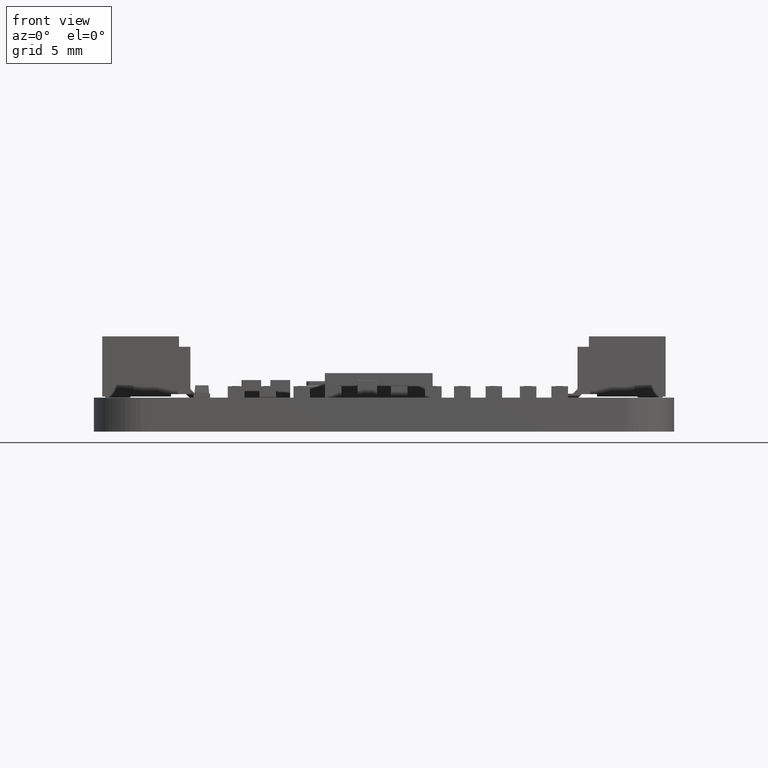
[diagram: clean part render]
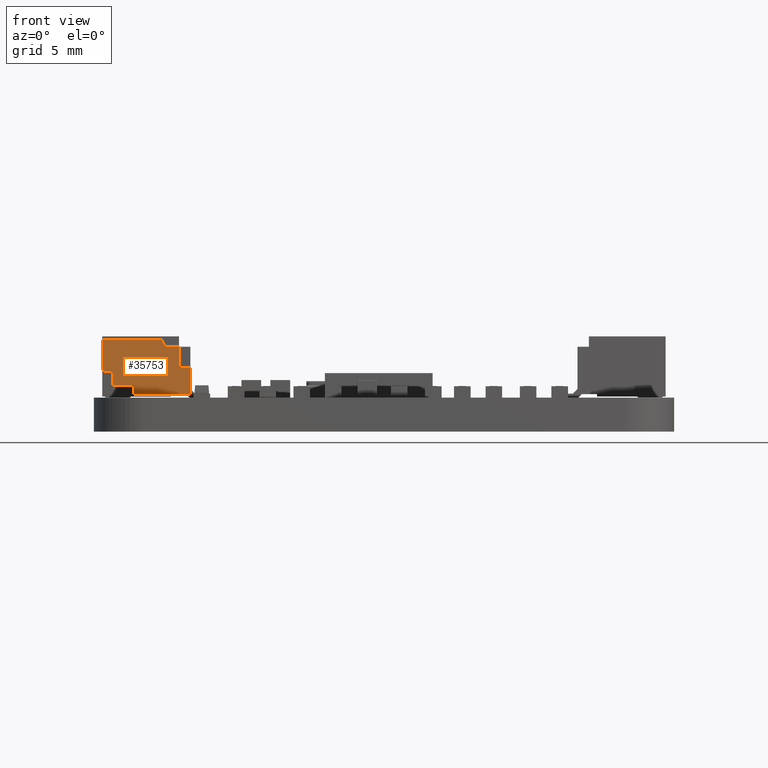
[diagram: same view with one face highlighted and labeled with its STEP entity id]
A machine part, front view. The second image highlights one B-rep face of the part: STEP entity #35753.
In plain terms, the highlighted planar face has unit normal (-0, 1, -0).
Its self-contained STEP definition (entity closure, byte-faithful):
#33131 = VERTEX_POINT('',#33132);
#33132 = CARTESIAN_POINT('',(3.,1.655,3.895));
#33138 = EDGE_CURVE('',#33131,#33139,#33141,.T.);
#33139 = VERTEX_POINT('',#33140);
#33140 = CARTESIAN_POINT('',(3.,3.105,3.895));
#33141 = LINE('',#33142,#33143);
#33142 = CARTESIAN_POINT('',(3.,3.255,3.895));
#33143 = VECTOR('',#33144,1.);
#33144 = DIRECTION('',(-5.605193857299E-45,1.,3.914088217711E-59));
#33680 = VERTEX_POINT('',#33681);
#33681 = CARTESIAN_POINT('',(3.,0.47,-0.355));
#33687 = EDGE_CURVE('',#33680,#33688,#33690,.T.);
#33688 = VERTEX_POINT('',#33689);
#33689 = CARTESIAN_POINT('',(3.,0.47,2.395));
#33690 = LINE('',#33691,#33692);
#33691 = CARTESIAN_POINT('',(3.,0.47,-1.055));
#33692 = VECTOR('',#33693,1.);
#33693 = DIRECTION('',(-0.,-0.,1.));
#35056 = VERTEX_POINT('',#35057);
#35057 = CARTESIAN_POINT('',(3.,2.755,0.195));
#35072 = VERTEX_POINT('',#35073);
#35073 = CARTESIAN_POINT('',(3.,2.755,0.845));
#35079 = EDGE_CURVE('',#35072,#35056,#35080,.T.);
#35080 = LINE('',#35081,#35082);
#35081 = CARTESIAN_POINT('',(3.,2.755,-0.355));
#35082 = VECTOR('',#35083,1.);
#35083 = DIRECTION('',(-6.982966722219E-15,-0.,-1.));
#35094 = VERTEX_POINT('',#35095);
#35095 = CARTESIAN_POINT('',(3.,1.755,0.195));
#35110 = EDGE_CURVE('',#35056,#35094,#35111,.T.);
#35111 = LINE('',#35112,#35113);
#35112 = CARTESIAN_POINT('',(3.,3.255,0.195));
#35113 = VECTOR('',#35114,1.);
#35114 = DIRECTION('',(5.605193857299E-45,-1.,-3.914088217711E-59));
#35125 = VERTEX_POINT('',#35126);
#35126 = CARTESIAN_POINT('',(3.,0.905,3.395));
#35143 = VERTEX_POINT('',#35144);
#35144 = CARTESIAN_POINT('',(3.,0.905,2.395));
#35150 = EDGE_CURVE('',#35143,#35125,#35151,.T.);
#35151 = LINE('',#35152,#35153);
#35152 = CARTESIAN_POINT('',(3.,0.905,-0.355));
#35153 = VECTOR('',#35154,1.);
#35154 = DIRECTION('',(6.982966722219E-15,0.,1.));
#35165 = VERTEX_POINT('',#35166);
#35166 = CARTESIAN_POINT('',(3.,1.555,3.395));
#35181 = EDGE_CURVE('',#35125,#35165,#35182,.T.);
#35182 = LINE('',#35183,#35184);
#35183 = CARTESIAN_POINT('',(3.,3.255,3.395));
#35184 = VECTOR('',#35185,1.);
#35185 = DIRECTION('',(-5.605193857299E-45,1.,3.914088217711E-59));
#35195 = EDGE_CURVE('',#35165,#35196,#35198,.T.);
#35196 = VERTEX_POINT('',#35197);
#35197 = CARTESIAN_POINT('',(3.,1.555,3.795));
#35198 = LINE('',#35199,#35200);
#35199 = CARTESIAN_POINT('',(3.,1.555,-0.355));
#35200 = VECTOR('',#35201,1.);
#35201 = DIRECTION('',(6.982966722219E-15,0.,1.));
#35227 = VERTEX_POINT('',#35228);
#35228 = CARTESIAN_POINT('',(3.,1.755,-0.355));
#35243 = EDGE_CURVE('',#35094,#35227,#35244,.T.);
#35244 = LINE('',#35245,#35246);
#35245 = CARTESIAN_POINT('',(3.,1.755,-0.355));
#35246 = VECTOR('',#35247,1.);
#35247 = DIRECTION('',(-6.982966722219E-15,-0.,-1.));
#35369 = EDGE_CURVE('',#35370,#33139,#35372,.T.);
#35370 = VERTEX_POINT('',#35371);
#35371 = CARTESIAN_POINT('',(3.,3.105,1.047072594216));
#35372 = LINE('',#35373,#35374);
#35373 = CARTESIAN_POINT('',(3.,3.105,-1.055));
#35374 = VECTOR('',#35375,1.);
#35375 = DIRECTION('',(-0.,-0.,1.));
#35391 = EDGE_CURVE('',#33131,#35196,#35392,.T.);
#35392 = LINE('',#35393,#35394);
#35393 = CARTESIAN_POINT('',(3.,1.555,3.795));
#35394 = VECTOR('',#35395,1.);
#35395 = DIRECTION('',(-4.937703122081E-15,-0.707106781187,
    -0.707106781187));
#35692 = EDGE_CURVE('',#35072,#35370,#35693,.T.);
#35693 = LINE('',#35694,#35695);
#35694 = CARTESIAN_POINT('',(3.,2.755,0.845));
#35695 = VECTOR('',#35696,1.);
#35696 = DIRECTION('',(-0.,0.866025403784,0.5));
#35742 = EDGE_CURVE('',#33688,#35143,#35743,.T.);
#35743 = LINE('',#35744,#35745);
#35744 = CARTESIAN_POINT('',(3.,3.255,2.395));
#35745 = VECTOR('',#35746,1.);
#35746 = DIRECTION('',(-5.605193857299E-45,1.,3.914088217711E-59));
#35753 = ADVANCED_FACE('',(#35754),#35774,.F.);
#35754 = FACE_BOUND('',#35755,.T.);
#35755 = EDGE_LOOP('',(#35756,#35757,#35758,#35759,#35760,#35761,#35762,
    #35763,#35764,#35765,#35771,#35772,#35773));
#35756 = ORIENTED_EDGE('',*,*,#35692,.T.);
#35757 = ORIENTED_EDGE('',*,*,#35369,.T.);
#35758 = ORIENTED_EDGE('',*,*,#33138,.F.);
#35759 = ORIENTED_EDGE('',*,*,#35391,.T.);
#35760 = ORIENTED_EDGE('',*,*,#35195,.F.);
#35761 = ORIENTED_EDGE('',*,*,#35181,.F.);
#35762 = ORIENTED_EDGE('',*,*,#35150,.F.);
#35763 = ORIENTED_EDGE('',*,*,#35742,.F.);
#35764 = ORIENTED_EDGE('',*,*,#33687,.F.);
#35765 = ORIENTED_EDGE('',*,*,#35766,.T.);
#35766 = EDGE_CURVE('',#33680,#35227,#35767,.T.);
#35767 = LINE('',#35768,#35769);
#35768 = CARTESIAN_POINT('',(3.,3.255,-0.355));
#35769 = VECTOR('',#35770,1.);
#35770 = DIRECTION('',(2.480848139264E-29,1.,3.491483361109E-15));
#35771 = ORIENTED_EDGE('',*,*,#35243,.F.);
#35772 = ORIENTED_EDGE('',*,*,#35110,.F.);
#35773 = ORIENTED_EDGE('',*,*,#35079,.F.);
#35774 = PLANE('',#35775);
#35775 = AXIS2_PLACEMENT_3D('',#35776,#35777,#35778);
#35776 = CARTESIAN_POINT('',(3.,3.255,-0.355));
#35777 = DIRECTION('',(-1.,-5.605193857299E-45,6.982966722219E-15));
#35778 = DIRECTION('',(6.982966722219E-15,0.,1.));